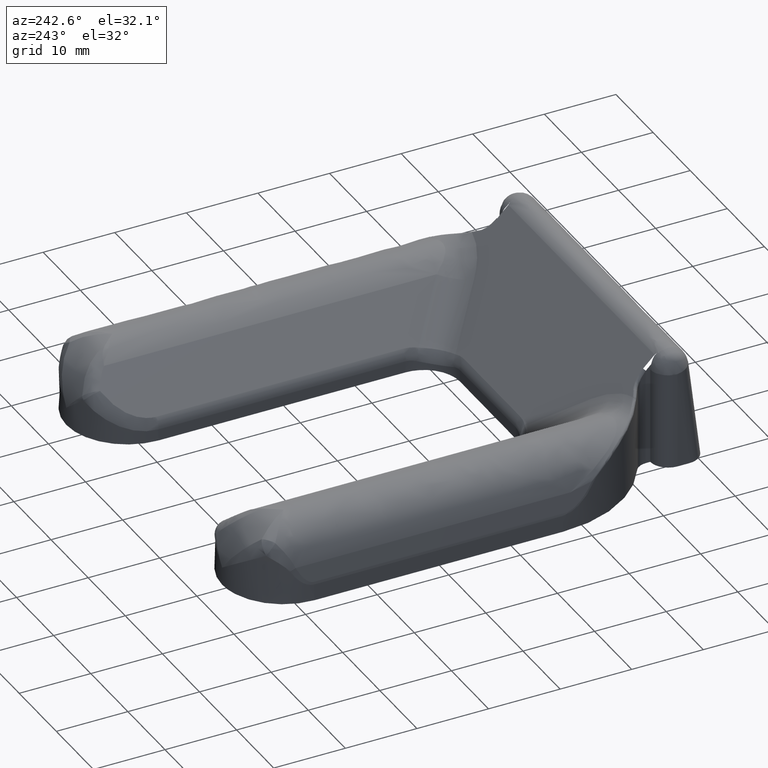
[diagram: clean part render]
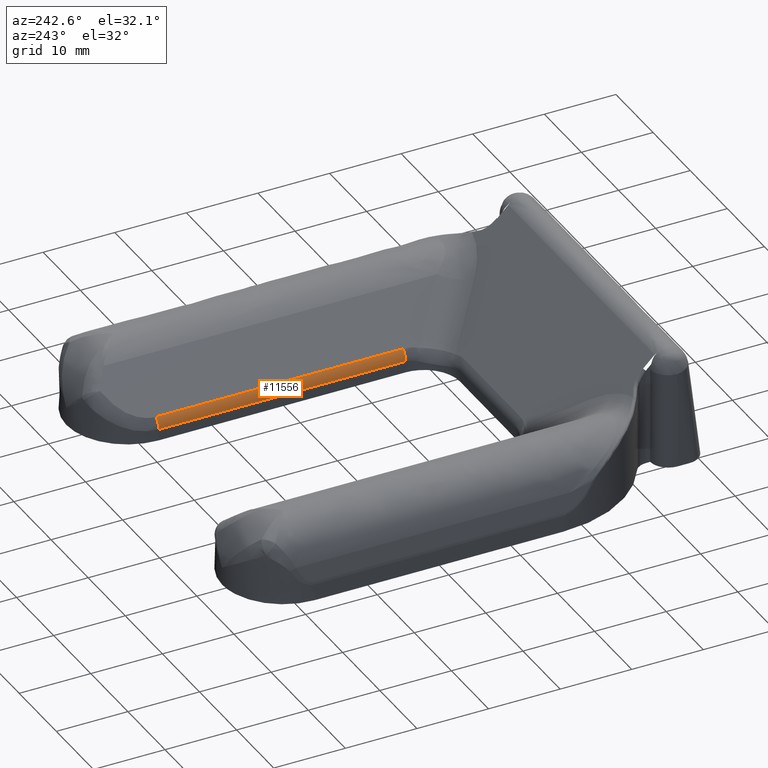
[diagram: same view with one face highlighted and labeled with its STEP entity id]
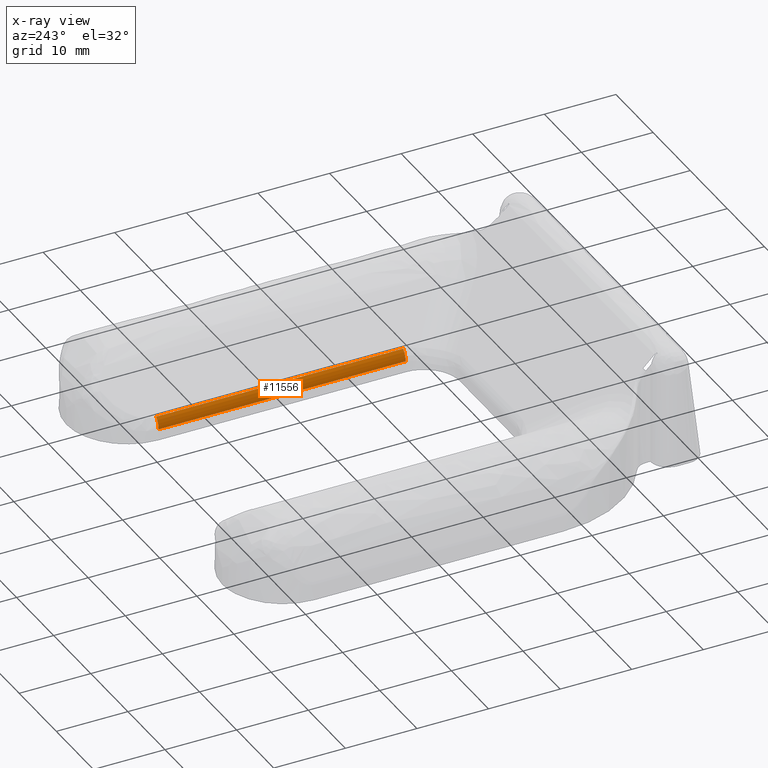
[diagram: x-ray of the same camera — body ghosted, the highlighted face saturated]
A machine part, auxiliary view. The second image highlights one B-rep face of the part: STEP entity #11556.
The next image is the same camera in x-ray: the body ghosted, the highlighted face saturated — about 0% of this face is hidden behind the body in this view.
In plain terms, the highlighted face is a freeform B-spline surface patch.
Its self-contained STEP definition (entity closure, byte-faithful):
#11483=CARTESIAN_POINT('',(13.159332631104441,24.0,3.095602766773275));
#11484=VERTEX_POINT('',#11483);
#11485=CARTESIAN_POINT('',(12.500000000000000,24.0,1.611483160414450));
#11486=VERTEX_POINT('',#11485);
#11487=CARTESIAN_POINT('',(13.159332631104441,24.0,3.095602766773275));
#11488=CARTESIAN_POINT('',(13.049446987662790,24.000000000000011,2.996364321449636));
#11489=CARTESIAN_POINT('',(12.828588040224391,24.0,2.747112509110111));
#11490=CARTESIAN_POINT('',(12.570251474532141,24.000000000000028,2.247239516009060));
#11491=CARTESIAN_POINT('',(12.499875881061580,23.999999999999950,1.837946323156757));
#11492=CARTESIAN_POINT('',(12.500000000000000,24.0,1.611483160414450));
#11493=B_SPLINE_CURVE_WITH_KNOTS('',3,(#11487,#11488,#11489,#11490,#11491,#11492),.UNSPECIFIED.,.F.,.U.,(4,1,1,4),(0.000000027675928,0.444201654221033,0.992914799506413,1.672287806995179),.UNSPECIFIED.);
#11494=EDGE_CURVE('',#11484,#11486,#11493,.T.);
#11516=CARTESIAN_POINT('',(12.500685350048890,59.362499999999997,1.559129263798701));
#11517=CARTESIAN_POINT('',(12.500685350048890,23.115937500000001,1.559129263798701));
#11518=CARTESIAN_POINT('',(12.475305623670678,59.362500000000004,2.528341911562367));
#11519=CARTESIAN_POINT('',(12.475305623670678,23.115937500000005,2.528341911562367));
#11520=CARTESIAN_POINT('',(13.220468834381911,59.362500000000011,3.148623360985630));
#11521=CARTESIAN_POINT('',(13.220468834381911,23.115937500000001,3.148623360985630));
#11529=(BOUNDED_SURFACE()B_SPLINE_SURFACE(1,2,((#11516,#11518,#11520),(#11517,#11519,#11521)),.UNSPECIFIED.,.F.,.F.,.U.)B_SPLINE_SURFACE_WITH_KNOTS((2,2),(3,3),(0.0,36.246562500000003),(0.0,0.994541688957531),.UNSPECIFIED.)GEOMETRIC_REPRESENTATION_ITEM()RATIONAL_B_SPLINE_SURFACE(((1.0,0.899346459873816,0.998901203340931),(1.0,0.899346459873816,0.998901203340931)))REPRESENTATION_ITEM('')SURFACE());
#11530=CARTESIAN_POINT('',(13.159332631104441,58.500000000000000,3.095602766773270));
#11531=VERTEX_POINT('',#11530);
#11532=CARTESIAN_POINT('',(12.500000000000000,58.500000000000000,1.611483160414440));
#11533=VERTEX_POINT('',#11532);
#11534=CARTESIAN_POINT('',(13.159332631104441,58.500000000000000,3.095602766773270));
#11535=CARTESIAN_POINT('',(13.049438043088539,58.499999999999993,2.996368413374574));
#11536=CARTESIAN_POINT('',(12.857695856655591,58.499999999999993,2.779891613278829));
#11537=CARTESIAN_POINT('',(12.584194412801841,58.500000000000057,2.290642154927004));
#11538=CARTESIAN_POINT('',(12.499683230185481,58.500000000000163,1.881550380348116));
#11539=CARTESIAN_POINT('',(12.500000000000000,58.500000000000000,1.611483160414440));
#11540=B_SPLINE_CURVE_WITH_KNOTS('',3,(#11534,#11535,#11536,#11537,#11538,#11539),.UNSPECIFIED.,.F.,.U.,(4,1,1,4),(0.000000027675256,0.444201654220567,0.862258749165011,1.672287806995195),.UNSPECIFIED.);
#11541=EDGE_CURVE('',#11531,#11533,#11540,.T.);
#11542=ORIENTED_EDGE('',*,*,#11541,.T.);
#11543=CARTESIAN_POINT('',(12.500000000000000,24.0,1.611483160414450));
#11544=CARTESIAN_POINT('',(12.500000000000000,58.500000000000000,1.611483160414440));
#11545=QUASI_UNIFORM_CURVE('',1,(#11543,#11544),.UNSPECIFIED.,.F.,.U.);
#11546=EDGE_CURVE('',#11486,#11533,#11545,.T.);
#11547=ORIENTED_EDGE('',*,*,#11546,.F.);
#11548=ORIENTED_EDGE('',*,*,#11494,.F.);
#11549=CARTESIAN_POINT('',(13.159332631104441,58.500000000000000,3.095602766773270));
#11550=CARTESIAN_POINT('',(13.159332631104441,24.0,3.095602766773275));
#11551=QUASI_UNIFORM_CURVE('',1,(#11549,#11550),.UNSPECIFIED.,.F.,.U.);
#11552=EDGE_CURVE('',#11531,#11484,#11551,.T.);
#11553=ORIENTED_EDGE('',*,*,#11552,.F.);
#11554=EDGE_LOOP('',(#11542,#11547,#11548,#11553));
#11555=FACE_OUTER_BOUND('',#11554,.T.);
#11556=ADVANCED_FACE('',(#11555),#11529,.T.);